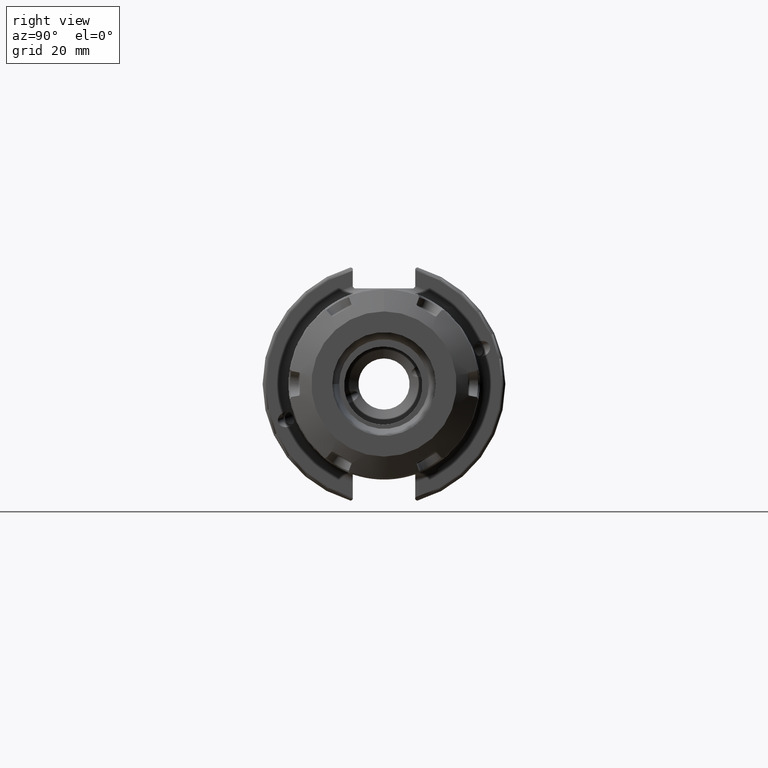
[diagram: clean part render]
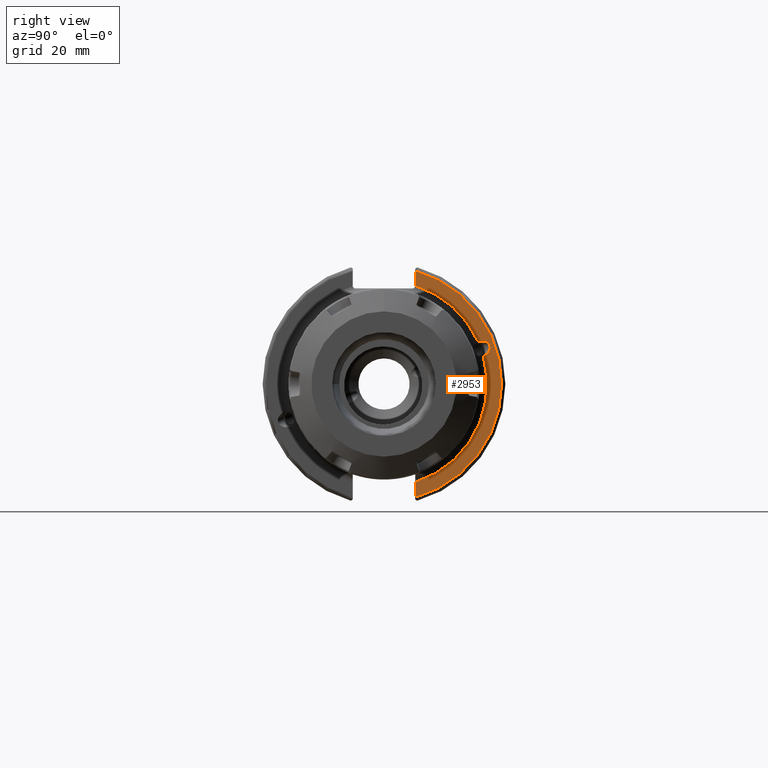
[diagram: same view with one face highlighted and labeled with its STEP entity id]
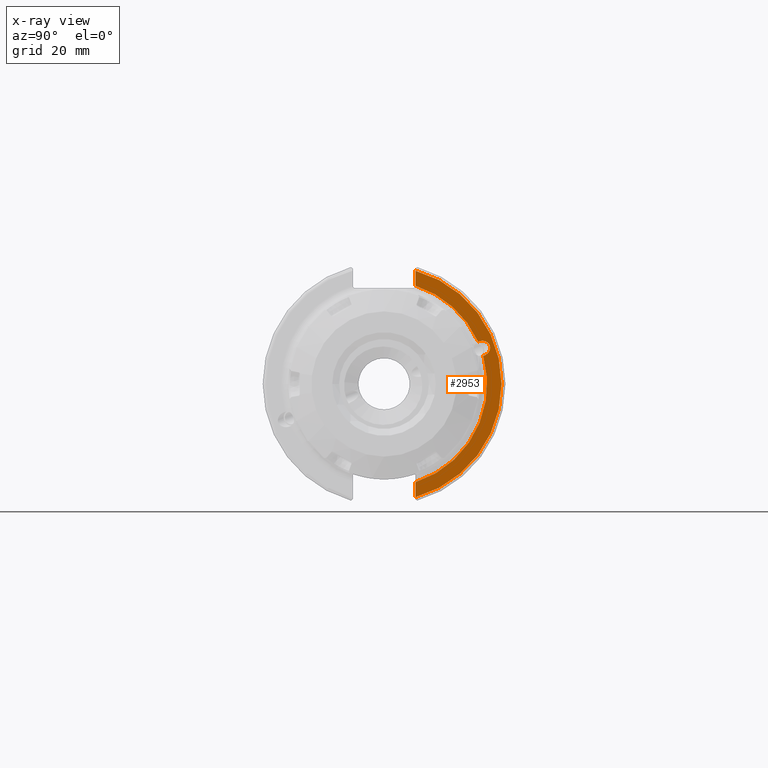
[diagram: x-ray of the same camera — body ghosted, the highlighted face saturated]
A machine part, right view. The second image highlights one B-rep face of the part: STEP entity #2953.
The next image is the same camera in x-ray: the body ghosted, the highlighted face saturated — about 0% of this face is hidden behind the body in this view.
In plain terms, the highlighted planar face has unit normal (1, 0, 0).
Its self-contained STEP definition (entity closure, byte-faithful):
#283=ELLIPSE('',#3238,2.44154917752291,2.);
#359=PLANE('',#3239);
#445=FACE_OUTER_BOUND('',#622,.T.);
#622=EDGE_LOOP('',(#2127,#2128,#2129,#2130,#2131,#2132));
#807=LINE('',#4724,#980);
#808=LINE('',#4728,#981);
#980=VECTOR('',#3645,10.);
#981=VECTOR('',#3648,10.);
#1157=CIRCLE('',#3240,27.);
#1158=CIRCLE('',#3241,30.75);
#1159=CIRCLE('',#3242,27.);
#1317=VERTEX_POINT('',#4689);
#1319=VERTEX_POINT('',#4703);
#1320=VERTEX_POINT('',#4721);
#1321=VERTEX_POINT('',#4723);
#1322=VERTEX_POINT('',#4725);
#1323=VERTEX_POINT('',#4727);
#1628=EDGE_CURVE('',#1319,#1317,#283,.T.);
#1631=EDGE_CURVE('',#1320,#1317,#1157,.T.);
#1632=EDGE_CURVE('',#1320,#1321,#807,.T.);
#1633=EDGE_CURVE('',#1322,#1321,#1158,.T.);
#1634=EDGE_CURVE('',#1322,#1323,#808,.T.);
#1635=EDGE_CURVE('',#1319,#1323,#1159,.T.);
#2127=ORIENTED_EDGE('',*,*,#1628,.T.);
#2128=ORIENTED_EDGE('',*,*,#1631,.F.);
#2129=ORIENTED_EDGE('',*,*,#1632,.T.);
#2130=ORIENTED_EDGE('',*,*,#1633,.F.);
#2131=ORIENTED_EDGE('',*,*,#1634,.T.);
#2132=ORIENTED_EDGE('',*,*,#1635,.F.);
#2953=ADVANCED_FACE('',(#445),#359,.T.);
#3238=AXIS2_PLACEMENT_3D('',#4704,#3638,#3639);
#3239=AXIS2_PLACEMENT_3D('',#4720,#3641,#3642);
#3240=AXIS2_PLACEMENT_3D('',#4722,#3643,#3644);
#3241=AXIS2_PLACEMENT_3D('',#4726,#3646,#3647);
#3242=AXIS2_PLACEMENT_3D('',#4729,#3649,#3650);
#3638=DIRECTION('center_axis',(-1.,0.,0.));
#3639=DIRECTION('ref_axis',(5.68400912649003E-17,0.939692620785908,0.34202014332567));
#3641=DIRECTION('center_axis',(1.,0.,0.));
#3642=DIRECTION('ref_axis',(0.,0.,-1.));
#3643=DIRECTION('center_axis',(1.,0.,0.));
#3644=DIRECTION('ref_axis',(0.,0.986107628833363,0.166107628833363));
#3645=DIRECTION('',(0.,0.,-1.));
#3646=DIRECTION('center_axis',(-1.,0.,0.));
#3647=DIRECTION('ref_axis',(0.,1.,-6.12323399573677E-17));
#3648=DIRECTION('',(0.,0.,-1.));
#3649=DIRECTION('center_axis',(1.,0.,0.));
#3650=DIRECTION('ref_axis',(0.,0.986107628833363,0.166107628833363));
#4689=CARTESIAN_POINT('',(19.05,25.9857875753917,7.33067828284791));
#4703=CARTESIAN_POINT('',(19.05,24.6183373430118,11.0877169185396));
#4704=CARTESIAN_POINT('Origin',(19.05,25.3717007612195,9.23454386979306));
#4720=CARTESIAN_POINT('Origin',(19.05,0.,0.));
#4721=CARTESIAN_POINT('',(19.05,8.19,-25.727881762788));
#4722=CARTESIAN_POINT('Origin',(19.05,0.,0.));
#4723=CARTESIAN_POINT('',(19.05,8.19,-29.6392712461019));
#4724=CARTESIAN_POINT('',(19.05,8.19,-11.3));
#4725=CARTESIAN_POINT('',(19.05,8.19,29.6392712461019));
#4726=CARTESIAN_POINT('Origin',(19.05,0.,0.));
#4727=CARTESIAN_POINT('',(19.05,8.19,25.727881762788));
#4728=CARTESIAN_POINT('',(19.05,8.19,12.5));
#4729=CARTESIAN_POINT('Origin',(19.05,0.,0.));